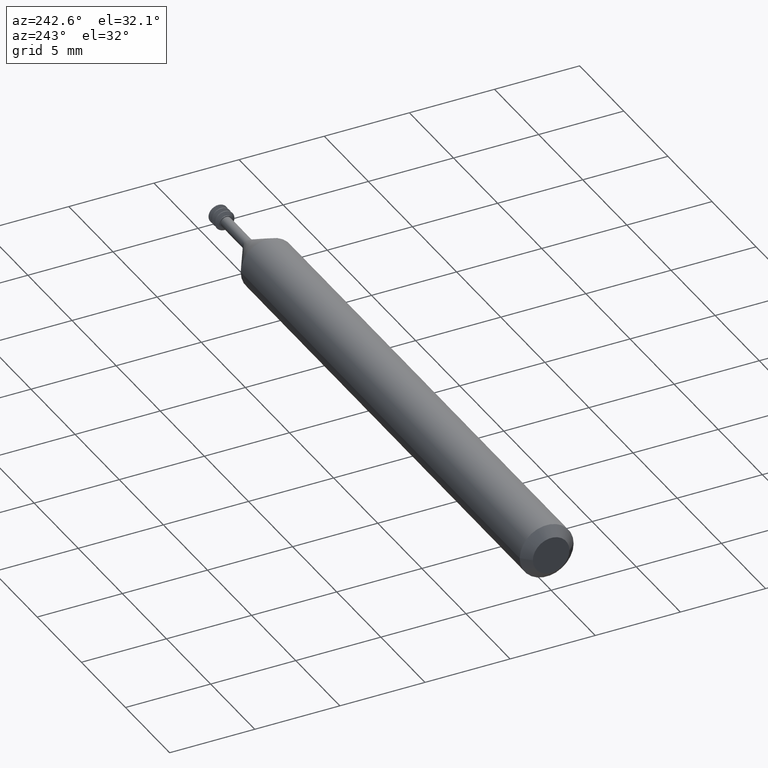
[diagram: clean part render]
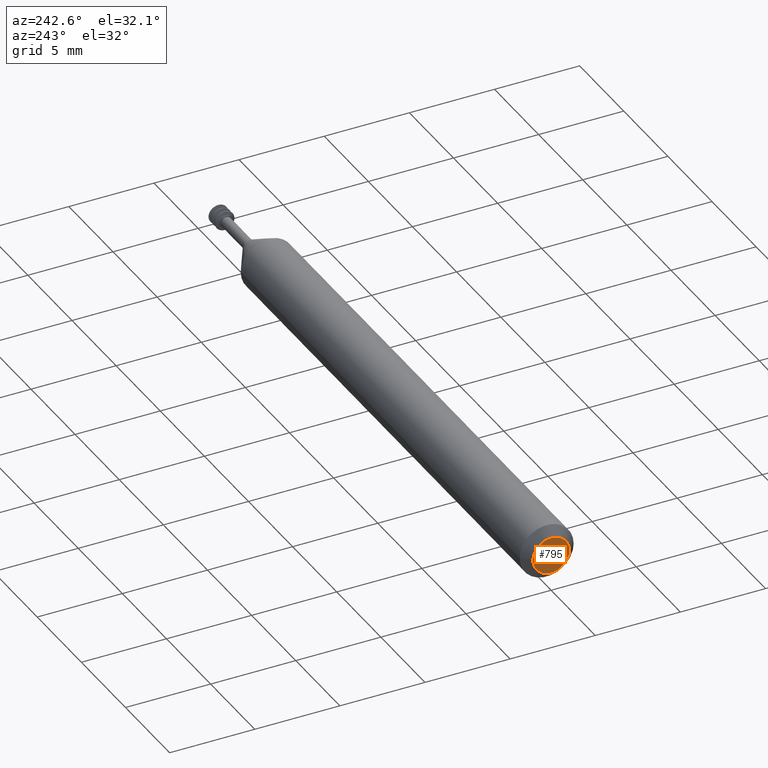
[diagram: same view with one face highlighted and labeled with its STEP entity id]
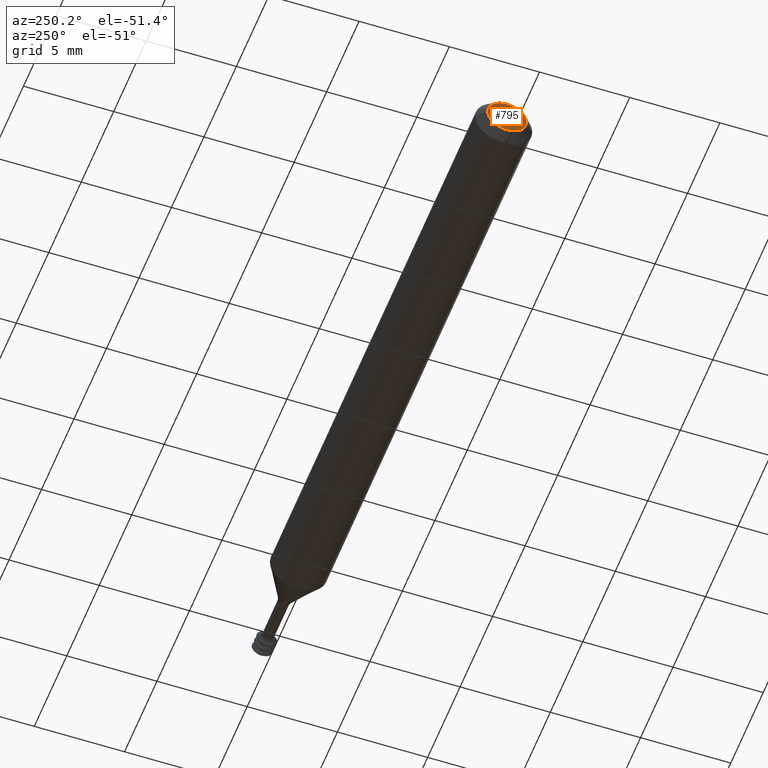
[diagram: same view with one face highlighted and labeled with its STEP entity id]
A machine part, auxiliary view. The second image highlights one B-rep face of the part: STEP entity #795.
A second angle (auxiliary view) of the same face is appended — the face is thin or edge-on in the first view.
In plain terms, the highlighted planar face has unit normal (1, 0, 0).
Its self-contained STEP definition (entity closure, byte-faithful):
#2 = PLANE ( 'NONE',  #14 ) ;
#11 = CARTESIAN_POINT ( 'NONE',  ( -2.120865084682141792E-18, 0.04234999999999999876, 0.0000000000000000000 ) ) ;
#14 = AXIS2_PLACEMENT_3D ( 'NONE', #189, #996, #465 ) ;
#57 = CIRCLE ( 'NONE', #1032, 0.04235000000000019998 ) ;
#128 = FACE_OUTER_BOUND ( 'NONE', #434, .T. ) ;
#189 = CARTESIAN_POINT ( 'NONE',  ( 2.766588704994412306E-18, 0.04234999999999999876, 0.0000000000000000000 ) ) ;
#190 = DIRECTION ( 'NONE',  ( -1.000000000000000000, -5.007945890630771977E-17, -0.0000000000000000000 ) ) ;
#434 = EDGE_LOOP ( 'NONE', ( #753, #645 ) ) ;
#465 = DIRECTION ( 'NONE',  ( -5.007945890630771977E-17, 1.000000000000000000, 0.0000000000000000000 ) ) ;
#530 = CARTESIAN_POINT ( 'NONE',  ( 0.0000000000000000000, -1.950798953288815110E-16, 0.0000000000000000000 ) ) ;
#598 = EDGE_CURVE ( 'NONE', #849, #1005, #57, .T. ) ;
#617 = DIRECTION ( 'NONE',  ( 5.007945890630771361E-17, -1.000000000000000000, 0.0000000000000000000 ) ) ;
#645 = ORIENTED_EDGE ( 'NONE', *, *, #820, .T. ) ;
#736 = CARTESIAN_POINT ( 'NONE',  ( 0.0000000000000000000, -1.950798953288815110E-16, 0.0000000000000000000 ) ) ;
#753 = ORIENTED_EDGE ( 'NONE', *, *, #598, .T. ) ;
#795 = ADVANCED_FACE ( 'NONE', ( #128 ), #2, .F. ) ;
#820 = EDGE_CURVE ( 'NONE', #1005, #849, #1058, .T. ) ;
#834 = DIRECTION ( 'NONE',  ( 5.007945890630771361E-17, -1.000000000000000000, 0.0000000000000000000 ) ) ;
#849 = VERTEX_POINT ( 'NONE', #11 ) ;
#859 = CARTESIAN_POINT ( 'NONE',  ( 2.120865084682141792E-18, -0.04235000000000039427, 6.411025993536418516E-18 ) ) ;
#941 = AXIS2_PLACEMENT_3D ( 'NONE', #736, #190, #834 ) ;
#996 = DIRECTION ( 'NONE',  ( 1.000000000000000000, 5.007945890630771977E-17, 0.0000000000000000000 ) ) ;
#1005 = VERTEX_POINT ( 'NONE', #859 ) ;
#1032 = AXIS2_PLACEMENT_3D ( 'NONE', #530, #1136, #617 ) ;
#1058 = CIRCLE ( 'NONE', #941, 0.04235000000000019998 ) ;
#1136 = DIRECTION ( 'NONE',  ( -1.000000000000000000, -5.007945890630771977E-17, -0.0000000000000000000 ) ) ;